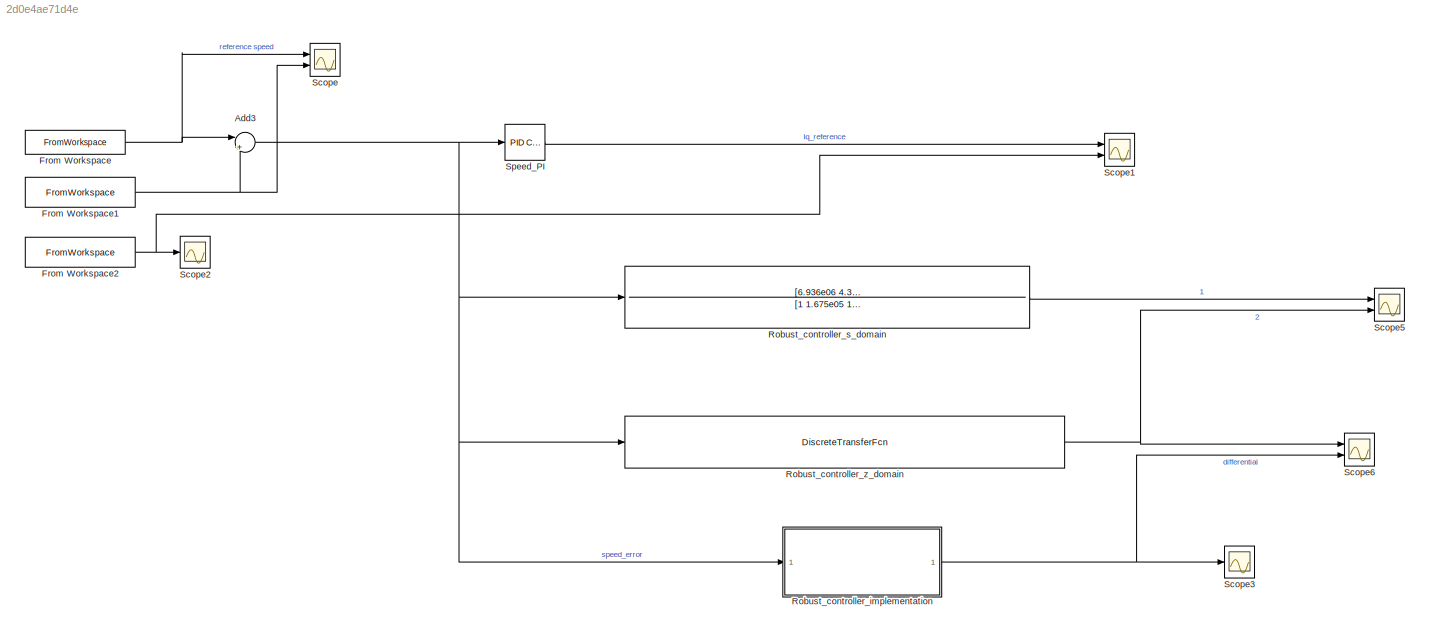
MODEL slx_2d0e4ae71d4e
KIND model
CONFIG AbsTol = auto
CONFIG EnableMultiTasking = off
CONFIG FixedStep = 0.00001
CONFIG InitFcn = Ts = 10e-6;\n\nR = 0.958;\nLd = 5.25e-3;\nLq = 12e-3;\nPn = 4;\nflux = 0.1827;
CONFIG MaxStep = auto
CONFIG MinStep = auto
CONFIG RelTol = 1e-4
CONFIG SampleTimeConstraint = Unconstrained
CONFIG SolverName = FixedStepAuto
CONFIG StartTime = 0.0
CONFIG StopTime = 25
WORKSPACE source: mxarray member
WORKSPACE Flux_Linkage = 0.027213034
WORKSPACE Torque_Constant = 0.2885
WORKSPACE Voltage_Constant = 30.23
BLOCK [Sum] Add3
  Inputs = |+-
  Ports = [2, 1]
BLOCK [FromWorkspace] From Workspace
  SampleTime = -1
  VariableName = Reference_speed_series
BLOCK [FromWorkspace] From Workspace1
  SampleTime = -1
  VariableName = Speed_feedback_series
BLOCK [FromWorkspace] From Workspace2
  SampleTime = -1
  VariableName = Speed_PI_output_series
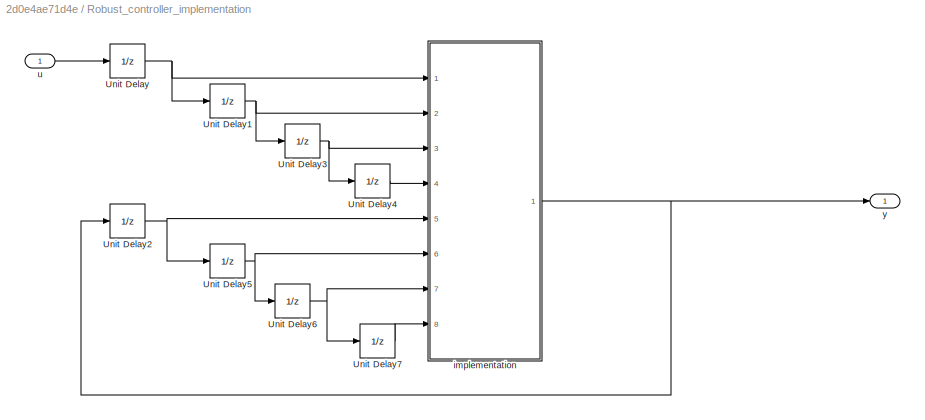
BLOCK [SubSystem] Robust_controller_implementation
  Ports = [1, 1]
  RequestExecContextInheritance = off
BLOCK [UnitDelay] Robust_controller_implementation/Unit Delay
  HasFrameUpgradeWarning = on
  SampleTime = 0.0005
BLOCK [UnitDelay] Robust_controller_implementation/Unit Delay1
  HasFrameUpgradeWarning = on
  SampleTime = 0.0005
BLOCK [UnitDelay] Robust_controller_implementation/Unit Delay2
  HasFrameUpgradeWarning = on
  SampleTime = 0.0005
BLOCK [UnitDelay] Robust_controller_implementation/Unit Delay3
  HasFrameUpgradeWarning = on
  SampleTime = 0.0005
BLOCK [UnitDelay] Robust_controller_implementation/Unit Delay4
  HasFrameUpgradeWarning = on
  SampleTime = 0.0005
BLOCK [UnitDelay] Robust_controller_implementation/Unit Delay5
  HasFrameUpgradeWarning = on
  SampleTime = 0.0005
BLOCK [UnitDelay] Robust_controller_implementation/Unit Delay6
  HasFrameUpgradeWarning = on
  SampleTime = 0.0005
BLOCK [UnitDelay] Robust_controller_implementation/Unit Delay7
  HasFrameUpgradeWarning = on
  SampleTime = 0.0005
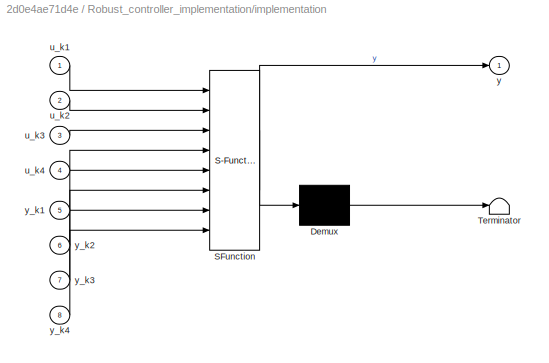
BLOCK [SubSystem] Robust_controller_implementation/implementation
  ErrorFcn = Stateflow.Translate.translate
  PermitHierarchicalResolution = ExplicitOnly
  Ports = [8, 1]
  RequestExecContextInheritance = off
  SFBlockType = MATLAB Function
  TreatAsAtomicUnit = on
BLOCK [Demux] Robust_controller_implementation/implementation/ Demux 
  Outputs = 1
  Ports = [1, 1]
BLOCK [S-Function] Robust_controller_implementation/implementation/ SFunction 
  EnableBusSupport = on
  FunctionName = sf_sfun
  PortCounts = [8 2]
  Ports = [8, 2]
  SFcnIsStateOwnerBlock = off
  SFunctionDeploymentMode = off
  Tag = Stateflow S-Function 5
BLOCK [Terminator] Robust_controller_implementation/implementation/ Terminator 
BLOCK [Inport] Robust_controller_implementation/implementation/u_k1
BLOCK [Inport] Robust_controller_implementation/implementation/u_k2
  Port = 2
BLOCK [Inport] Robust_controller_implementation/implementation/u_k3
  Port = 3
BLOCK [Inport] Robust_controller_implementation/implementation/u_k4
  Port = 4
BLOCK [Outport] Robust_controller_implementation/implementation/y
BLOCK [Inport] Robust_controller_implementation/implementation/y_k1
  Port = 5
BLOCK [Inport] Robust_controller_implementation/implementation/y_k2
  Port = 6
BLOCK [Inport] Robust_controller_implementation/implementation/y_k3
  Port = 7
BLOCK [Inport] Robust_controller_implementation/implementation/y_k4
  Port = 8
BLOCK [Inport] Robust_controller_implementation/u
BLOCK [Outport] Robust_controller_implementation/y
BLOCK [TransferFcn] Robust_controller_s_domain
  Denominator = [1 1.675e05 1.143e10 3.481e09 3481]
  Numerator = [6.936e06 4.358e10 2.111e10 2.526e09]
BLOCK [DiscreteTransferFcn] Robust_controller_z_domain
  Denominator = [1 -2 1 6.572e-19 8.047e-37]
  InputPortMap = u0
  Numerator = [3.814 -7.627 3.813 -6.277e-17]
  Ports = [1, 1]
  SampleTime = 0.0005
BLOCK [Scope] Scope
  Floating = off
  NumInputPorts = 2
  Ports = [2]
  ScopeSpecificationString = Simulink.scopes.TimeScopeBlockCfg('CurrentConfiguration', extmgr.ConfigurationSet(extmgr.Configuration('Core','General UI',true),extmgr.Configuration('Core','Source UI',true),extmgr.Configuration('Sources','WiredSimulink',true),extmgr.Configuration('Visuals','Time Domain',true,'SerializedDisplays',{struct('MinYLimReal','-74.7125','MaxYLimReal','70.4125','YLabelReal','','MinYLimMag','0.00000','MaxY...<+1706ch>
BLOCK [Scope] Scope1
  Floating = off
  NumInputPorts = 2
  Ports = [2]
  ScopeSpecificationString = Simulink.scopes.TimeScopeBlockCfg('CurrentConfiguration', extmgr.ConfigurationSet(extmgr.Configuration('Core','General UI',true),extmgr.Configuration('Core','Source UI',true),extmgr.Configuration('Sources','WiredSimulink',true,'DataLoggingVariableName','ScopeData1'),extmgr.Configuration('Visuals','Time Domain',true,'SerializedDisplays',{struct('MinYLimReal','-65.18316','MaxYLimReal','186.64848','Y...<+1470ch>
BLOCK [Scope] Scope2
  Floating = off
  NumInputPorts = 1
  Ports = [1]
  ScopeSpecificationString = Simulink.scopes.TimeScopeBlockCfg('CurrentConfiguration', extmgr.ConfigurationSet(extmgr.Configuration('Core','General UI',true),extmgr.Configuration('Core','Source UI',true),extmgr.Configuration('Sources','WiredSimulink',true,'DataLoggingVariableName','ScopeData2'),extmgr.Configuration('Visuals','Time Domain',true,'SerializedDisplays',{struct('MinYLimReal','-50.00000','MaxYLimReal','50.00000','YL...<+1455ch>
BLOCK [Scope] Scope3
  Floating = off
  NumInputPorts = 1
  Ports = [1]
  ScopeSpecificationString = Simulink.scopes.TimeScopeBlockCfg('CurrentConfiguration', extmgr.ConfigurationSet(extmgr.Configuration('Core','General UI',true),extmgr.Configuration('Core','Source UI',true),extmgr.Configuration('Sources','WiredSimulink',true,'DataLoggingVariableName','ScopeData1'),extmgr.Configuration('Visuals','Time Domain',true,'SerializedDisplays',{struct('MinYLimReal','-69.77678','MaxYLimReal','117.74138','Y...<+1491ch>
BLOCK [Scope] Scope5
  Floating = off
  NumInputPorts = 2
  Ports = [2]
  ScopeSpecificationString = Simulink.scopes.TimeScopeBlockCfg('CurrentConfiguration', extmgr.ConfigurationSet(extmgr.Configuration('Core','General UI',true),extmgr.Configuration('Core','Source UI',true),extmgr.Configuration('Sources','WiredSimulink',true,'DataLoggingVariableName','ScopeData2'),extmgr.Configuration('Visuals','Time Domain',true,'SerializedDisplays',{struct('MinYLimReal','-29.69001','MaxYLimReal','31.71692','YL...<+1441ch>
BLOCK [Scope] Scope6
  Floating = off
  NumInputPorts = 2
  Ports = [2]
  ScopeSpecificationString = Simulink.scopes.TimeScopeBlockCfg('CurrentConfiguration', extmgr.ConfigurationSet(extmgr.Configuration('Core','General UI',true),extmgr.Configuration('Core','Source UI',true),extmgr.Configuration('Sources','WiredSimulink',true,'DataLoggingVariableName','ScopeData1'),extmgr.Configuration('Visuals','Time Domain',true,'SerializedDisplays',{struct('MinYLimReal','-20.9731','MaxYLimReal','21.44208','YLa...<+1495ch>
BLOCK [Reference] Speed_PI  REF=pid_lib/PID Controller
  Ports = [1, 1]
  SourceBlock = pid_lib/PID Controller
  SourceProductBaseCode = SL
  SourceType = PID 1dof
NET Add3:1 -> Robust_controller_implementation:1, Robust_controller_s_domain:1, Robust_controller_z_domain:1, Speed_PI:1
NET From Workspace1:1 -> Add3:2, Scope:2
NET From Workspace2:1 -> Scope1:2, Scope2:1
NET From Workspace:1 -> Add3:1, Scope:1
NET Robust_controller_implementation/Unit Delay1:1 -> Robust_controller_implementation/Unit Delay3:1, Robust_controller_implementation/implementation:2
NET Robust_controller_implementation/Unit Delay2:1 -> Robust_controller_implementation/Unit Delay5:1, Robust_controller_implementation/implementation:5
NET Robust_controller_implementation/Unit Delay3:1 -> Robust_controller_implementation/Unit Delay4:1, Robust_controller_implementation/implementation:3
LINE Robust_controller_implementation/Unit Delay4:1 -> Robust_controller_implementation/implementation:4
NET Robust_controller_implementation/Unit Delay5:1 -> Robust_controller_implementation/Unit Delay6:1, Robust_controller_implementation/implementation:6
NET Robust_controller_implementation/Unit Delay6:1 -> Robust_controller_implementation/Unit Delay7:1, Robust_controller_implementation/implementation:7
LINE Robust_controller_implementation/Unit Delay7:1 -> Robust_controller_implementation/implementation:8
NET Robust_controller_implementation/Unit Delay:1 -> Robust_controller_implementation/Unit Delay1:1, Robust_controller_implementation/implementation:1
NET Robust_controller_implementation/implementation:1 -> Robust_controller_implementation/Unit Delay2:1, Robust_controller_implementation/y:1
LINE Robust_controller_implementation/u:1 -> Robust_controller_implementation/Unit Delay:1
NET Robust_controller_implementation:1 -> Scope3:1, Scope6:2
LINE Robust_controller_s_domain:1 -> Scope5:1
NET Robust_controller_z_domain:1 -> Scope5:2, Scope6:1
LINE Speed_PI:1 -> Scope1:1
note: NET lines group one-source signal fan-out (src -> all destinations, sorted); 1:1 wires keep LINE
CHART Robust_controller_implementation/implementation states=1 transitions=1
  STATE_LABEL 'eML_blk_kernel()'
  STATE_LABEL 'SCRIPT:\nfunction y = fcn(u_k1,u_k2,u_k3,u_k4,y_k1,y_k2,y_k3,y_k4)\n\ny = 2*y_k1 - y_k2 - 6.572e-19*y_k3 - 8.047e-37*y_k4 + 3.814*u_k1 - 7.627*u_k2 + 3.813*u_k3 - 6.277e-17*u_k4;\n'
CHART  states=0 transitions=0
